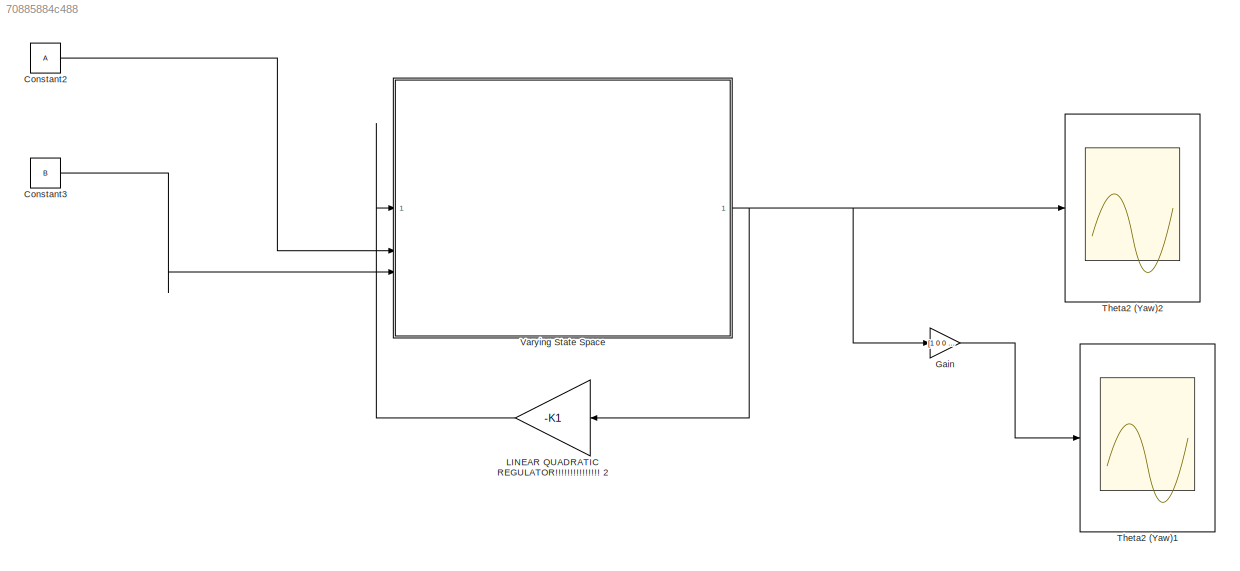
MODEL slx_70885884c488
KIND model
CONFIG AbsTol = auto
CONFIG EnableMultiTasking = off
CONFIG FixedStep = 0.0001
CONFIG MaxStep = auto
CONFIG MinStep = auto
CONFIG RelTol = 1e-3
CONFIG SampleTimeConstraint = Unconstrained
CONFIG SolverName = FixedStepAuto
CONFIG StartTime = 0.0
CONFIG StopTime = 10
BLOCK [Constant] Constant2
  Value = A
  VectorParams1D = off
BLOCK [Constant] Constant3
  Value = B
  VectorParams1D = off
BLOCK [Gain] Gain
  Gain = [1 0 0 0]
  Multiplication = Matrix(K*u)
BLOCK [Gain] LINEAR QUADRATIC REGULATOR!!!!!!!!!!!!!!! 2
  Gain = -K1
  Multiplication = Matrix(K*u)
BLOCK [Scope] Theta2 (Yaw)1
  Floating = off
  NumInputPorts = 1
  ScopeSpecificationString = Simulink.scopes.TimeScopeBlockCfg('CurrentConfiguration', extmgr.ConfigurationSet(extmgr.Configuration('Core','General UI',true),extmgr.Configuration('Core','Source UI',true),extmgr.Configuration('Sources','WiredSimulink',true,'DataLoggingVariableName','ScopeData1'),extmgr.Configuration('Visuals','Time Domain',true,'SerializedDisplays',{struct('MinYLimReal','-0.0625','MaxYLimReal','0.5625','YLabel...<+1383ch>
BLOCK [Scope] Theta2 (Yaw)2
  Floating = off
  NumInputPorts = 1
  ScopeSpecificationString = Simulink.scopes.TimeScopeBlockCfg('CurrentConfiguration', extmgr.ConfigurationSet(extmgr.Configuration('Core','General UI',true),extmgr.Configuration('Core','Source UI',true),extmgr.Configuration('Sources','WiredSimulink',true,'DataLoggingVariableName','ScopeData2'),extmgr.Configuration('Visuals','Time Domain',true,'SerializedDisplays',{struct('MinYLimReal','-25.25586','MaxYLimReal','3.36176','YLa...<+1482ch>
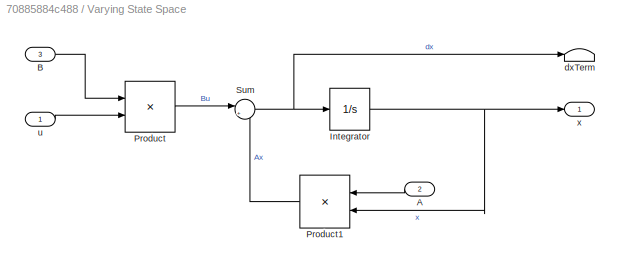
BLOCK [SubSystem] Varying State Space
  AncestorBlock = cstblocks/Linear Parameter Varying/Varying State Space
  LibrarySourceBlock = cstblocks/Linear Parameter Varying/Varying State Space
BLOCK [Inport] Varying State Space/A
  Port = 2
BLOCK [Inport] Varying State Space/B
  Port = 3
BLOCK [Integrator] Varying State Space/Integrator
  ContinuousStateAttributes = xNames
  InitialCondition = x0
BLOCK [Product] Varying State Space/Product
  Multiplication = Matrix(*)
  SCDEnableBlockLinearizationSpecification = on
BLOCK [Product] Varying State Space/Product1
  Multiplication = Matrix(*)
  SCDEnableBlockLinearizationSpecification = on
BLOCK [Sum] Varying State Space/Sum
  Inputs = |++
BLOCK [Terminator] Varying State Space/dxTerm
BLOCK [Inport] Varying State Space/u
BLOCK [Outport] Varying State Space/x
LINE Constant2:1 -> Varying State Space:2
LINE Constant3:1 -> Varying State Space:3
LINE Gain:1 -> Theta2 (Yaw)1:1
LINE LINEAR QUADRATIC REGULATOR!!!!!!!!!!!!!!! 2:1 -> Varying State Space:1
NET Varying State Space:1 -> Gain:1, LINEAR QUADRATIC REGULATOR!!!!!!!!!!!!!!! 2:1, Theta2 (Yaw)2:1
note: NET lines group one-source signal fan-out (src -> all destinations, sorted); 1:1 wires keep LINE
